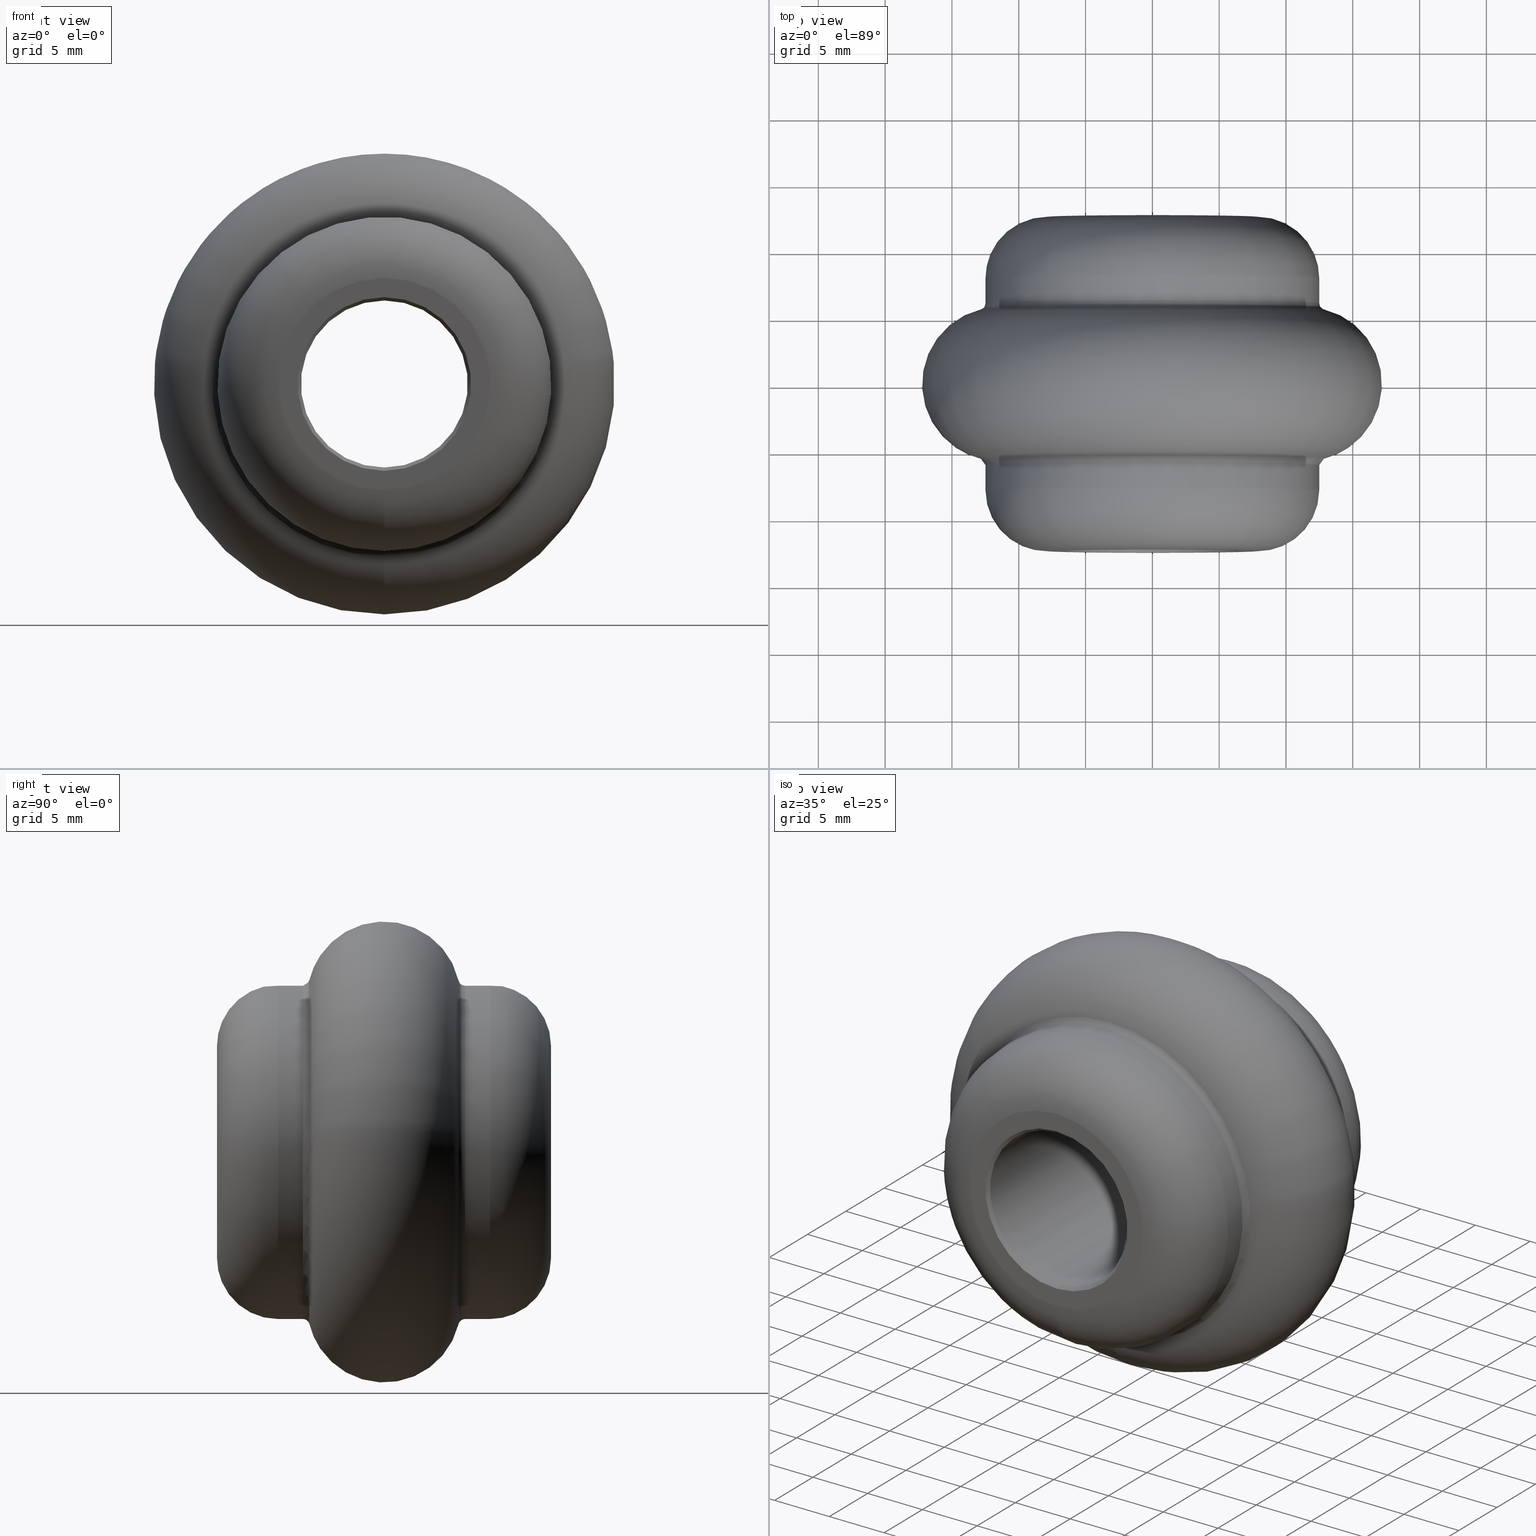
[diagram: canonical four-view strip — front | top / right | iso, engineering-drawing reading convention]
A machine part, canonical four-view strip (front | top / right | iso — engineering-drawing reading convention). The complete STEP part file that produces these views, byte-faithful:
ISO-10303-21;
HEADER;
FILE_DESCRIPTION (( 'STEP AP203' ),
    '1' );
FILE_NAME ('1380.STEP',
    '2024-10-22T13:54:10',
    ( '' ),
    ( '' ),
    'SwSTEP 2.0',
    'SolidWorks 2018',
    '' );
FILE_SCHEMA (( 'CONFIG_CONTROL_DESIGN' ));
ENDSEC;

DATA;
#1 = PRODUCT_RELATED_PRODUCT_CATEGORY ( 'detail', '', ( #226 ) ) ;
#2 = CARTESIAN_POINT ( 'NONE',  ( 0.000000000000000000, -12.50000000000000000, 0.000000000000000000 ) ) ;
#3 = EDGE_CURVE ( 'NONE', #181, #181, #79, .T. ) ;
#4 = CIRCLE ( 'NONE', #266, 6.250000000000000000 ) ;
#5 = DIRECTION ( 'NONE',  ( 0.000000000000000000, 0.000000000000000000, 1.000000000000000000 ) ) ;
#6 = LOCAL_TIME ( 15, 54, 10.00000000000000000, #74 ) ;
#7 = AXIS2_PLACEMENT_3D ( 'NONE', #213, #193, #317 ) ;
#8 = CARTESIAN_POINT ( 'NONE',  ( 0.000000000000000000, -12.50000000000000000, -6.500000000000005329 ) ) ;
#9 = DIRECTION ( 'NONE',  ( 1.000000000000000000, 0.000000000000000000, 0.000000000000000000 ) ) ;
#10 = CARTESIAN_POINT ( 'NONE',  ( 0.000000000000000000, 0.000000000000000000, 0.000000000000000000 ) ) ;
#11 = FACE_OUTER_BOUND ( 'NONE', #253, .T. ) ;
#12 = EDGE_LOOP ( 'NONE', ( #224 ) ) ;
#13 = ADVANCED_BREP_SHAPE_REPRESENTATION ( '1380', ( #264, #58 ), #174 ) ;
#14 = CC_DESIGN_PERSON_AND_ORGANIZATION_ASSIGNMENT ( #314, #68, ( #226 ) ) ;
#15 = CYLINDRICAL_SURFACE ( 'NONE', #233, 12.50000000000000000 ) ;
#16 = VERTEX_POINT ( 'NONE', #142 ) ;
#17 = FACE_OUTER_BOUND ( 'NONE', #307, .T. ) ;
#18 = EDGE_CURVE ( 'NONE', #306, #306, #43, .T. ) ;
#19 = COORDINATED_UNIVERSAL_TIME_OFFSET ( 1, 0, .AHEAD. ) ;
#20 = AXIS2_PLACEMENT_3D ( 'NONE', #164, #184, #5 ) ;
#21 = CARTESIAN_POINT ( 'NONE',  ( 0.000000000000000000, -12.50000000000000000, 0.000000000000000000 ) ) ;
#22 = AXIS2_PLACEMENT_3D ( 'NONE', #21, #238, #285 ) ;
#23 = ORIENTED_EDGE ( 'NONE', *, *, #149, .T. ) ;
#24 = ADVANCED_FACE ( 'NONE', ( #131, #11 ), #177, .F. ) ;
#25 = EDGE_LOOP ( 'NONE', ( #118 ) ) ;
#26 = CARTESIAN_POINT ( 'NONE',  ( 0.000000000000000000, 0.000000000000000000, 0.000000000000000000 ) ) ;
#27 = CC_DESIGN_PERSON_AND_ORGANIZATION_ASSIGNMENT ( #286, #65, ( #153 ) ) ;
#28 = CARTESIAN_POINT ( 'NONE',  ( 0.000000000000000000, 5.581944105775385800, 0.000000000000000000 ) ) ;
#29 = AXIS2_PLACEMENT_3D ( 'NONE', #73, #103, #260 ) ;
#30 = VERTEX_POINT ( 'NONE', #222 ) ;
#31 = ORIENTED_EDGE ( 'NONE', *, *, #69, .T. ) ;
#32 = DIRECTION ( 'NONE',  ( -0.000000000000000000, -1.000000000000000000, -0.000000000000000000 ) ) ;
#33 = APPLICATION_PROTOCOL_DEFINITION ( 'international standard', 'config_control_design', 1994, #247 ) ;
#34 =( NAMED_UNIT ( * ) SI_UNIT ( $, .STERADIAN. ) SOLID_ANGLE_UNIT ( ) );
#35 = ORGANIZATION ( 'UNSPECIFIED', 'UNSPECIFIED', '' ) ;
#36 = TOROIDAL_SURFACE ( 'NONE', #312, 7.936961005306948813, 4.563038994693052075 ) ;
#37 = APPROVAL_ROLE ( '' ) ;
#38 = DIRECTION ( 'NONE',  ( 0.000000000000000000, 1.000000000000000000, 0.000000000000000000 ) ) ;
#39 = CARTESIAN_POINT ( 'NONE',  ( 0.000000000000000000, 7.936961005306948813, -12.50000000000000000 ) ) ;
#40 = ORIENTED_EDGE ( 'NONE', *, *, #102, .F. ) ;
#41 = AXIS2_PLACEMENT_3D ( 'NONE', #162, #313, #295 ) ;
#42 = VERTEX_POINT ( 'NONE', #225 ) ;
#43 = CIRCLE ( 'NONE', #230, 12.50000000000000000 ) ;
#44 = EDGE_LOOP ( 'NONE', ( #67 ) ) ;
#45 = DIRECTION ( 'NONE',  ( 0.000000000000000000, -1.000000000000000000, -0.000000000000000000 ) ) ;
#46 = PERSON_AND_ORGANIZATION ( #138, #35 ) ;
#47 = DATE_AND_TIME ( #87, #228 ) ;
#48 = FACE_OUTER_BOUND ( 'NONE', #187, .T. ) ;
#49 = ADVANCED_FACE ( 'NONE', ( #125, #293 ), #262, .T. ) ;
#50 = DATE_AND_TIME ( #211, #178 ) ;
#51 = DIRECTION ( 'NONE',  ( -0.000000000000000000, -1.000000000000000000, -0.000000000000000000 ) ) ;
#52 = FACE_OUTER_BOUND ( 'NONE', #311, .T. ) ;
#53 = ORIENTED_EDGE ( 'NONE', *, *, #3, .F. ) ;
#54 = DIRECTION ( 'NONE',  ( 0.000000000000000000, 0.000000000000000000, -1.000000000000000000 ) ) ;
#55 = DIRECTION ( 'NONE',  ( 0.000000000000000000, 0.000000000000000000, 1.000000000000000000 ) ) ;
#56 = DIRECTION ( 'NONE',  ( -0.000000000000000000, -1.000000000000000000, -0.000000000000000000 ) ) ;
#57 = APPROVAL_DATE_TIME ( #50, #90 ) ;
#58 = AXIS2_PLACEMENT_3D ( 'NONE', #10, #221, #9 ) ;
#59 = DATE_AND_TIME ( #137, #6 ) ;
#60 = CIRCLE ( 'NONE', #29, 7.936961005306948813 ) ;
#61 = DIRECTION ( 'NONE',  ( 0.000000000000000000, 0.000000000000000000, -1.000000000000000000 ) ) ;
#62 = APPLICATION_PROTOCOL_DEFINITION ( 'international standard', 'config_control_design', 1994, #220 ) ;
#63 = AXIS2_PLACEMENT_3D ( 'NONE', #309, #45, #206 ) ;
#64 =( NAMED_UNIT ( * ) PLANE_ANGLE_UNIT ( ) SI_UNIT ( $, .RADIAN. ) );
#65 = PERSON_AND_ORGANIZATION_ROLE ( 'creator' ) ;
#66 = AXIS2_PLACEMENT_3D ( 'NONE', #106, #185, #107 ) ;
#67 = ORIENTED_EDGE ( 'NONE', *, *, #3, .T. ) ;
#68 = PERSON_AND_ORGANIZATION_ROLE ( 'design_owner' ) ;
#69 = EDGE_CURVE ( 'NONE', #30, #30, #60, .T. ) ;
#70 = CIRCLE ( 'NONE', #141, 7.936961005306948813 ) ;
#71 = ORIENTED_EDGE ( 'NONE', *, *, #72, .T. ) ;
#72 = EDGE_CURVE ( 'NONE', #112, #112, #70, .T. ) ;
#73 = CARTESIAN_POINT ( 'NONE',  ( 0.000000000000000000, 12.50000000000000000, 0.000000000000000000 ) ) ;
#74 = COORDINATED_UNIVERSAL_TIME_OFFSET ( 1, 0, .AHEAD. ) ;
#75 = TOROIDAL_SURFACE ( 'NONE', #326, 11.50000000000000178, 5.750000000000001776 ) ;
#76 = APPROVAL ( #115, 'UNSPECIFIED' ) ;
#77 = ADVANCED_FACE ( 'NONE', ( #92, #170 ), #151, .T. ) ;
#78 = AXIS2_PLACEMENT_3D ( 'NONE', #292, #32, #163 ) ;
#79 = CIRCLE ( 'NONE', #303, 6.500000000000005329 ) ;
#80 = EDGE_LOOP ( 'NONE', ( #259 ) ) ;
#81 = CARTESIAN_POINT ( 'NONE',  ( 0.000000000000000000, -12.24999999999999645, 0.000000000000000000 ) ) ;
#82 = CC_DESIGN_APPROVAL ( #105, ( #308 ) ) ;
#83 = CARTESIAN_POINT ( 'NONE',  ( 0.000000000000000000, -12.50000000000000000, 0.000000000000000000 ) ) ;
#84 = CARTESIAN_POINT ( 'NONE',  ( 0.000000000000000000, 12.50000000000000000, 0.000000000000000000 ) ) ;
#85 = COORDINATED_UNIVERSAL_TIME_OFFSET ( 1, 0, .AHEAD. ) ;
#86 = DIRECTION ( 'NONE',  ( 0.000000000000000000, 0.000000000000000000, -1.000000000000000000 ) ) ;
#87 = CALENDAR_DATE ( 2024, 22, 10 ) ;
#88 = EDGE_CURVE ( 'NONE', #109, #109, #232, .T. ) ;
#89 =( LENGTH_UNIT ( ) NAMED_UNIT ( * ) SI_UNIT ( .MILLI., .METRE. ) );
#90 = APPROVAL ( #93, 'UNSPECIFIED' ) ;
#91 = APPROVAL_DATE_TIME ( #95, #76 ) ;
#92 = FACE_OUTER_BOUND ( 'NONE', #25, .T. ) ;
#93 = APPROVAL_STATUS ( 'not_yet_approved' ) ;
#94 = DESIGN_CONTEXT ( 'detailed design', #247, 'design' ) ;
#95 = DATE_AND_TIME ( #100, #278 ) ;
#96 = APPROVAL_PERSON_ORGANIZATION ( #252, #76, #301 ) ;
#97 = CARTESIAN_POINT ( 'NONE',  ( 0.000000000000000000, -7.936961005306948813, 0.000000000000000000 ) ) ;
#98 = EDGE_LOOP ( 'NONE', ( #53 ) ) ;
#99 = CC_DESIGN_DATE_AND_TIME_ASSIGNMENT ( #202, #114, ( #126 ) ) ;
#100 = CALENDAR_DATE ( 2024, 22, 10 ) ;
#101 = EDGE_LOOP ( 'NONE', ( #147 ) ) ;
#102 = EDGE_CURVE ( 'NONE', #235, #235, #159, .T. ) ;
#103 = DIRECTION ( 'NONE',  ( -0.000000000000000000, -1.000000000000000000, -0.000000000000000000 ) ) ;
#104 = FACE_OUTER_BOUND ( 'NONE', #287, .T. ) ;
#105 = APPROVAL ( #274, 'UNSPECIFIED' ) ;
#106 = CARTESIAN_POINT ( 'NONE',  ( 0.000000000000000000, 12.24999999999999289, 0.000000000000000000 ) ) ;
#107 = DIRECTION ( 'NONE',  ( 0.000000000000000000, 0.000000000000000000, 1.000000000000000000 ) ) ;
#108 = CARTESIAN_POINT ( 'NONE',  ( 0.000000000000000000, -12.50000000000000000, 0.000000000000000000 ) ) ;
#109 = VERTEX_POINT ( 'NONE', #169 ) ;
#110 = EDGE_LOOP ( 'NONE', ( #320 ) ) ;
#111 = CC_DESIGN_APPROVAL ( #76, ( #153 ) ) ;
#112 = VERTEX_POINT ( 'NONE', #145 ) ;
#113 = CYLINDRICAL_SURFACE ( 'NONE', #20, 6.250000000000000000 ) ;
#114 = DATE_TIME_ROLE ( 'classification_date' ) ;
#115 = APPROVAL_STATUS ( 'not_yet_approved' ) ;
#116 = CARTESIAN_POINT ( 'NONE',  ( 0.000000000000000000, -7.936961005306948813, -12.50000000000000000 ) ) ;
#117 = ORIENTED_EDGE ( 'NONE', *, *, #199, .F. ) ;
#118 = ORIENTED_EDGE ( 'NONE', *, *, #102, .T. ) ;
#119 = EDGE_CURVE ( 'NONE', #150, #150, #196, .T. ) ;
#120 = PERSON_AND_ORGANIZATION ( #138, #35 ) ;
#121 = FACE_OUTER_BOUND ( 'NONE', #80, .T. ) ;
#122 = FACE_BOUND ( 'NONE', #205, .T. ) ;
#123 = CLOSED_SHELL ( 'NONE', ( #156, #49, #212, #77, #188, #130, #267, #158, #291, #210, #161, #24 ) ) ;
#124 = COORDINATED_UNIVERSAL_TIME_OFFSET ( 1, 0, .AHEAD. ) ;
#125 = FACE_BOUND ( 'NONE', #44, .T. ) ;
#126 = SECURITY_CLASSIFICATION ( '', '', #302 ) ;
#127 = CARTESIAN_POINT ( 'NONE',  ( 0.000000000000000000, -7.936961005306948813, 0.000000000000000000 ) ) ;
#128 = DIRECTION ( 'NONE',  ( 0.000000000000000000, 0.000000000000000000, -1.000000000000000000 ) ) ;
#129 = FACE_OUTER_BOUND ( 'NONE', #101, .T. ) ;
#130 = ADVANCED_FACE ( 'NONE', ( #139, #144 ), #15, .T. ) ;
#131 = FACE_OUTER_BOUND ( 'NONE', #152, .T. ) ;
#132 = CC_DESIGN_PERSON_AND_ORGANIZATION_ASSIGNMENT ( #46, #297, ( #126 ) ) ;
#133 = DIRECTION ( 'NONE',  ( -0.000000000000000000, -1.000000000000000000, -0.000000000000000000 ) ) ;
#134 = DIRECTION ( 'NONE',  ( -0.000000000000000000, -1.000000000000000000, -0.000000000000000000 ) ) ;
#135 = EDGE_CURVE ( 'NONE', #208, #208, #4, .T. ) ;
#136 = COORDINATED_UNIVERSAL_TIME_OFFSET ( 1, 0, .AHEAD. ) ;
#137 = CALENDAR_DATE ( 2024, 22, 10 ) ;
#138 = PERSON ( 'UNSPECIFIED', 'UNSPECIFIED', 'UNSPECIFIED', ('UNSPECIFIED'), ('UNSPECIFIED'), ('UNSPECIFIED') ) ;
#139 = FACE_OUTER_BOUND ( 'NONE', #12, .T. ) ;
#140 = CARTESIAN_POINT ( 'NONE',  ( 0.000000000000000000, 5.581944105775385800, -12.88000000000001322 ) ) ;
#141 = AXIS2_PLACEMENT_3D ( 'NONE', #2, #265, #236 ) ;
#142 = CARTESIAN_POINT ( 'NONE',  ( 0.000000000000000000, 6.067330549755802771, -12.50000000000000000 ) ) ;
#143 = APPROVAL_ROLE ( '' ) ;
#144 = FACE_OUTER_BOUND ( 'NONE', #294, .T. ) ;
#145 = CARTESIAN_POINT ( 'NONE',  ( 0.000000000000000000, -12.50000000000000000, -7.936961005306948813 ) ) ;
#146 = APPROVAL_PERSON_ORGANIZATION ( #261, #105, #143 ) ;
#147 = ORIENTED_EDGE ( 'NONE', *, *, #284, .T. ) ;
#148 = CC_DESIGN_SECURITY_CLASSIFICATION ( #126, ( #308 ) ) ;
#149 = EDGE_CURVE ( 'NONE', #200, #200, #300, .T. ) ;
#150 = VERTEX_POINT ( 'NONE', #140 ) ;
#151 = CYLINDRICAL_SURFACE ( 'NONE', #22, 12.50000000000000000 ) ;
#152 = EDGE_LOOP ( 'NONE', ( #244 ) ) ;
#153 = PRODUCT_DEFINITION ( 'UNKNOWN', '', #308, #94 ) ;
#154 = EDGE_CURVE ( 'NONE', #16, #16, #276, .T. ) ;
#155 = EDGE_LOOP ( 'NONE', ( #315 ) ) ;
#156 = ADVANCED_FACE ( 'NONE', ( #122, #121 ), #243, .T. ) ;
#157 = AXIS2_PLACEMENT_3D ( 'NONE', #207, #290, #55 ) ;
#158 = ADVANCED_FACE ( 'NONE', ( #52, #17 ), #113, .F. ) ;
#159 = CIRCLE ( 'NONE', #78, 12.50000000000000000 ) ;
#160 = DIRECTION ( 'NONE',  ( 0.000000000000000000, 1.000000000000000000, 0.000000000000000000 ) ) ;
#161 = ADVANCED_FACE ( 'NONE', ( #48, #248 ), #255, .F. ) ;
#162 = CARTESIAN_POINT ( 'NONE',  ( 0.000000000000000000, -6.067330549755800995, 0.000000000000000000 ) ) ;
#163 = DIRECTION ( 'NONE',  ( 0.000000000000000000, 0.000000000000000000, -1.000000000000000000 ) ) ;
#164 = CARTESIAN_POINT ( 'NONE',  ( 0.000000000000000000, -12.50000000000000000, 0.000000000000000000 ) ) ;
#165 = FACE_OUTER_BOUND ( 'NONE', #237, .T. ) ;
#166 = ORIENTED_EDGE ( 'NONE', *, *, #119, .T. ) ;
#167 = DIRECTION ( 'NONE',  ( 0.000000000000000000, 0.000000000000000000, 1.000000000000000000 ) ) ;
#168 = PERSON_AND_ORGANIZATION_ROLE ( 'design_supplier' ) ;
#169 = CARTESIAN_POINT ( 'NONE',  ( 0.000000000000000000, 12.50000000000000000, 6.500000000000011546 ) ) ;
#170 = FACE_OUTER_BOUND ( 'NONE', #155, .T. ) ;
#171 = PERSON_AND_ORGANIZATION_ROLE ( 'creator' ) ;
#172 = CC_DESIGN_DATE_AND_TIME_ASSIGNMENT ( #47, #194, ( #153 ) ) ;
#173 = EDGE_LOOP ( 'NONE', ( #40 ) ) ;
#174 =( GEOMETRIC_REPRESENTATION_CONTEXT ( 3 ) GLOBAL_UNCERTAINTY_ASSIGNED_CONTEXT ( ( #254 ) ) GLOBAL_UNIT_ASSIGNED_CONTEXT ( ( #89, #64, #34 ) ) REPRESENTATION_CONTEXT ( 'NONE', 'WORKASPACE' ) );
#175 = AXIS2_PLACEMENT_3D ( 'NONE', #28, #134, #128 ) ;
#176 = CONICAL_SURFACE ( 'NONE', #242, 6.250000000000000000, 0.7853981633974569387 ) ;
#177 = TOROIDAL_SURFACE ( 'NONE', #316, 13.00000000000000178, 0.5000000000000000000 ) ;
#178 = LOCAL_TIME ( 15, 54, 10.00000000000000000, #85 ) ;
#179 = ORIENTED_EDGE ( 'NONE', *, *, #88, .F. ) ;
#180 = DIRECTION ( 'NONE',  ( 0.000000000000000000, 0.000000000000000000, -1.000000000000000000 ) ) ;
#181 = VERTEX_POINT ( 'NONE', #8 ) ;
#182 = FACE_OUTER_BOUND ( 'NONE', #214, .T. ) ;
#183 = ORIENTED_EDGE ( 'NONE', *, *, #199, .T. ) ;
#184 = DIRECTION ( 'NONE',  ( -0.000000000000000000, 1.000000000000000000, -0.000000000000000000 ) ) ;
#185 = DIRECTION ( 'NONE',  ( 0.000000000000000000, 1.000000000000000000, 0.000000000000000000 ) ) ;
#186 = APPROVAL_PERSON_ORGANIZATION ( #281, #90, #37 ) ;
#187 = EDGE_LOOP ( 'NONE', ( #282 ) ) ;
#188 = ADVANCED_FACE ( 'NONE', ( #129, #182 ), #75, .T. ) ;
#189 = EDGE_LOOP ( 'NONE', ( #71 ) ) ;
#190 = DIRECTION ( 'NONE',  ( 0.000000000000000000, 0.000000000000000000, -1.000000000000000000 ) ) ;
#191 = DIRECTION ( 'NONE',  ( 0.000000000000000000, 0.000000000000000000, -1.000000000000000000 ) ) ;
#192 = AXIS2_PLACEMENT_3D ( 'NONE', #245, #215, #191 ) ;
#193 = DIRECTION ( 'NONE',  ( 0.000000000000000000, 1.000000000000000000, 0.000000000000000000 ) ) ;
#194 = DATE_TIME_ROLE ( 'creation_date' ) ;
#195 = APPROVAL_DATE_TIME ( #59, #105 ) ;
#196 = CIRCLE ( 'NONE', #175, 12.88000000000001322 ) ;
#197 = CARTESIAN_POINT ( 'NONE',  ( 0.000000000000000000, -5.581944105775385800, 0.000000000000000000 ) ) ;
#198 = ORIENTED_EDGE ( 'NONE', *, *, #119, .F. ) ;
#199 = EDGE_CURVE ( 'NONE', #231, #231, #218, .T. ) ;
#200 = VERTEX_POINT ( 'NONE', #249 ) ;
#201 = AXIS2_PLACEMENT_3D ( 'NONE', #84, #160, #246 ) ;
#202 = DATE_AND_TIME ( #296, #327 ) ;
#203 = EDGE_LOOP ( 'NONE', ( #322 ) ) ;
#204 = DIRECTION ( 'NONE',  ( 0.000000000000000000, 1.000000000000000000, 0.000000000000000000 ) ) ;
#205 = EDGE_LOOP ( 'NONE', ( #272 ) ) ;
#206 = DIRECTION ( 'NONE',  ( 0.000000000000000000, 0.000000000000000000, -1.000000000000000000 ) ) ;
#207 = CARTESIAN_POINT ( 'NONE',  ( 0.000000000000000000, 12.50000000000000000, 0.000000000000000000 ) ) ;
#208 = VERTEX_POINT ( 'NONE', #321 ) ;
#209 = CONICAL_SURFACE ( 'NONE', #323, 6.500000000000005329, 0.7853981633974517207 ) ;
#210 = ADVANCED_FACE ( 'NONE', ( #279, #328 ), #209, .F. ) ;
#211 = CALENDAR_DATE ( 2024, 22, 10 ) ;
#212 = ADVANCED_FACE ( 'NONE', ( #104, #263 ), #239, .T. ) ;
#213 = CARTESIAN_POINT ( 'NONE',  ( 0.000000000000000000, 6.067330549755802771, 0.000000000000000000 ) ) ;
#214 = EDGE_LOOP ( 'NONE', ( #166 ) ) ;
#215 = DIRECTION ( 'NONE',  ( -0.000000000000000000, -1.000000000000000000, -0.000000000000000000 ) ) ;
#216 = CARTESIAN_POINT ( 'NONE',  ( 0.000000000000000000, 12.24999999999999289, 0.000000000000000000 ) ) ;
#217 = FACE_BOUND ( 'NONE', #329, .T. ) ;
#218 = CIRCLE ( 'NONE', #192, 12.50000000000000000 ) ;
#219 = DIRECTION ( 'NONE',  ( -0.000000000000000000, -1.000000000000000000, -0.000000000000000000 ) ) ;
#220 = APPLICATION_CONTEXT ( 'configuration controlled 3d designs of mechanical parts and assemblies' ) ;
#221 = DIRECTION ( 'NONE',  ( 0.000000000000000000, 0.000000000000000000, 1.000000000000000000 ) ) ;
#222 = CARTESIAN_POINT ( 'NONE',  ( 0.000000000000000000, 12.50000000000000000, -7.936961005306948813 ) ) ;
#223 = CIRCLE ( 'NONE', #283, 12.88000000000001322 ) ;
#224 = ORIENTED_EDGE ( 'NONE', *, *, #154, .T. ) ;
#225 = CARTESIAN_POINT ( 'NONE',  ( 0.000000000000000000, -5.581944105775385800, 12.88000000000001322 ) ) ;
#226 = PRODUCT ( '1380', '1380', '', ( #251 ) ) ;
#227 = DIRECTION ( 'NONE',  ( 0.000000000000000000, 0.000000000000000000, 1.000000000000000000 ) ) ;
#228 = LOCAL_TIME ( 15, 54, 10.00000000000000000, #19 ) ;
#229 = CC_DESIGN_PERSON_AND_ORGANIZATION_ASSIGNMENT ( #319, #168, ( #308 ) ) ;
#230 = AXIS2_PLACEMENT_3D ( 'NONE', #97, #280, #288 ) ;
#231 = VERTEX_POINT ( 'NONE', #39 ) ;
#232 = CIRCLE ( 'NONE', #157, 6.500000000000011546 ) ;
#233 = AXIS2_PLACEMENT_3D ( 'NONE', #108, #219, #86 ) ;
#234 = PRODUCT_DEFINITION_SHAPE ( 'NONE', 'NONE',  #153 ) ;
#235 = VERTEX_POINT ( 'NONE', #275 ) ;
#236 = DIRECTION ( 'NONE',  ( 0.000000000000000000, 0.000000000000000000, -1.000000000000000000 ) ) ;
#237 = EDGE_LOOP ( 'NONE', ( #179 ) ) ;
#238 = DIRECTION ( 'NONE',  ( -0.000000000000000000, -1.000000000000000000, -0.000000000000000000 ) ) ;
#239 = TOROIDAL_SURFACE ( 'NONE', #289, 7.936961005306948813, 4.563038994693052075 ) ;
#240 = ORIENTED_EDGE ( 'NONE', *, *, #135, .T. ) ;
#241 = DIRECTION ( 'NONE',  ( 0.000000000000000000, 0.000000000000000000, -1.000000000000000000 ) ) ;
#242 = AXIS2_PLACEMENT_3D ( 'NONE', #216, #318, #167 ) ;
#243 = PLANE ( 'NONE',  #201 ) ;
#244 = ORIENTED_EDGE ( 'NONE', *, *, #154, .F. ) ;
#245 = CARTESIAN_POINT ( 'NONE',  ( 0.000000000000000000, 7.936961005306948813, 0.000000000000000000 ) ) ;
#246 = DIRECTION ( 'NONE',  ( 0.000000000000000000, -0.000000000000000000, 1.000000000000000000 ) ) ;
#247 = APPLICATION_CONTEXT ( 'configuration controlled 3d designs of mechanical parts and assemblies' ) ;
#248 = FACE_OUTER_BOUND ( 'NONE', #173, .T. ) ;
#249 = CARTESIAN_POINT ( 'NONE',  ( 0.000000000000000000, 12.24999999999999289, 6.250000000000000000 ) ) ;
#250 = EDGE_LOOP ( 'NONE', ( #31 ) ) ;
#251 = MECHANICAL_CONTEXT ( 'NONE', #220, 'mechanical' ) ;
#252 = PERSON_AND_ORGANIZATION ( #138, #35 ) ;
#253 = EDGE_LOOP ( 'NONE', ( #198 ) ) ;
#254 = UNCERTAINTY_MEASURE_WITH_UNIT (LENGTH_MEASURE( 1.000000000000000082E-05 ), #89, 'distance_accuracy_value', 'NONE');
#255 = TOROIDAL_SURFACE ( 'NONE', #41, 13.00000000000000178, 0.5000000000000000000 ) ;
#256 = CARTESIAN_POINT ( 'NONE',  ( 0.000000000000000000, -12.50000000000000000, 0.000000000000000000 ) ) ;
#257 = DIRECTION ( 'NONE',  ( -0.000000000000000000, -1.000000000000000000, -0.000000000000000000 ) ) ;
#258 = ORIENTED_EDGE ( 'NONE', *, *, #149, .F. ) ;
#259 = ORIENTED_EDGE ( 'NONE', *, *, #69, .F. ) ;
#260 = DIRECTION ( 'NONE',  ( 0.000000000000000000, 0.000000000000000000, -1.000000000000000000 ) ) ;
#261 = PERSON_AND_ORGANIZATION ( #138, #35 ) ;
#262 = PLANE ( 'NONE',  #63 ) ;
#263 = FACE_OUTER_BOUND ( 'NONE', #110, .T. ) ;
#264 = MANIFOLD_SOLID_BREP ( 'Verrundung1', #123 ) ;
#265 = DIRECTION ( 'NONE',  ( -0.000000000000000000, -1.000000000000000000, -0.000000000000000000 ) ) ;
#266 = AXIS2_PLACEMENT_3D ( 'NONE', #81, #133, #54 ) ;
#267 = ADVANCED_FACE ( 'NONE', ( #268, #324 ), #36, .T. ) ;
#268 = FACE_OUTER_BOUND ( 'NONE', #250, .T. ) ;
#269 = EDGE_LOOP ( 'NONE', ( #117 ) ) ;
#270 = DIRECTION ( 'NONE',  ( -0.000000000000000000, -1.000000000000000000, -0.000000000000000000 ) ) ;
#271 = DIRECTION ( 'NONE',  ( 0.000000000000000000, 0.000000000000000000, -1.000000000000000000 ) ) ;
#272 = ORIENTED_EDGE ( 'NONE', *, *, #88, .T. ) ;
#273 = CARTESIAN_POINT ( 'NONE',  ( 0.000000000000000000, 7.936961005306948813, 0.000000000000000000 ) ) ;
#274 = APPROVAL_STATUS ( 'not_yet_approved' ) ;
#275 = CARTESIAN_POINT ( 'NONE',  ( 0.000000000000000000, -6.067330549755800995, -12.50000000000000000 ) ) ;
#276 = CIRCLE ( 'NONE', #7, 12.50000000000000000 ) ;
#277 = CC_DESIGN_PERSON_AND_ORGANIZATION_ASSIGNMENT ( #120, #171, ( #308 ) ) ;
#278 = LOCAL_TIME ( 15, 54, 10.00000000000000000, #124 ) ;
#279 = FACE_BOUND ( 'NONE', #203, .T. ) ;
#280 = DIRECTION ( 'NONE',  ( -0.000000000000000000, -1.000000000000000000, -0.000000000000000000 ) ) ;
#281 = PERSON_AND_ORGANIZATION ( #138, #35 ) ;
#282 = ORIENTED_EDGE ( 'NONE', *, *, #284, .F. ) ;
#283 = AXIS2_PLACEMENT_3D ( 'NONE', #197, #38, #227 ) ;
#284 = EDGE_CURVE ( 'NONE', #42, #42, #223, .T. ) ;
#285 = DIRECTION ( 'NONE',  ( 0.000000000000000000, 0.000000000000000000, -1.000000000000000000 ) ) ;
#286 = PERSON_AND_ORGANIZATION ( #138, #35 ) ;
#287 = EDGE_LOOP ( 'NONE', ( #310 ) ) ;
#288 = DIRECTION ( 'NONE',  ( 0.000000000000000000, 0.000000000000000000, -1.000000000000000000 ) ) ;
#289 = AXIS2_PLACEMENT_3D ( 'NONE', #127, #270, #271 ) ;
#290 = DIRECTION ( 'NONE',  ( -0.000000000000000000, -1.000000000000000000, -0.000000000000000000 ) ) ;
#291 = ADVANCED_FACE ( 'NONE', ( #165, #217 ), #176, .F. ) ;
#292 = CARTESIAN_POINT ( 'NONE',  ( 0.000000000000000000, -6.067330549755800995, 0.000000000000000000 ) ) ;
#293 = FACE_OUTER_BOUND ( 'NONE', #189, .T. ) ;
#294 = EDGE_LOOP ( 'NONE', ( #183 ) ) ;
#295 = DIRECTION ( 'NONE',  ( 0.000000000000000000, 0.000000000000000000, -1.000000000000000000 ) ) ;
#296 = CALENDAR_DATE ( 2024, 22, 10 ) ;
#297 = PERSON_AND_ORGANIZATION_ROLE ( 'classification_officer' ) ;
#298 = DIRECTION ( 'NONE',  ( -0.000000000000000000, -1.000000000000000000, -0.000000000000000000 ) ) ;
#299 = SHAPE_DEFINITION_REPRESENTATION ( #234, #13 ) ;
#300 = CIRCLE ( 'NONE', #66, 6.250000000000000000 ) ;
#301 = APPROVAL_ROLE ( '' ) ;
#302 = SECURITY_CLASSIFICATION_LEVEL ( 'unclassified' ) ;
#303 = AXIS2_PLACEMENT_3D ( 'NONE', #256, #204, #304 ) ;
#304 = DIRECTION ( 'NONE',  ( 0.000000000000000000, 0.000000000000000000, -1.000000000000000000 ) ) ;
#305 = CC_DESIGN_APPROVAL ( #90, ( #126 ) ) ;
#306 = VERTEX_POINT ( 'NONE', #116 ) ;
#307 = EDGE_LOOP ( 'NONE', ( #240 ) ) ;
#308 = PRODUCT_DEFINITION_FORMATION_WITH_SPECIFIED_SOURCE ( 'ANY', '', #226, .NOT_KNOWN. ) ;
#309 = CARTESIAN_POINT ( 'NONE',  ( 0.000000000000000000, -12.50000000000000000, 0.000000000000000000 ) ) ;
#310 = ORIENTED_EDGE ( 'NONE', *, *, #18, .T. ) ;
#311 = EDGE_LOOP ( 'NONE', ( #23 ) ) ;
#312 = AXIS2_PLACEMENT_3D ( 'NONE', #273, #298, #61 ) ;
#313 = DIRECTION ( 'NONE',  ( -0.000000000000000000, -1.000000000000000000, -0.000000000000000000 ) ) ;
#314 = PERSON_AND_ORGANIZATION ( #138, #35 ) ;
#315 = ORIENTED_EDGE ( 'NONE', *, *, #18, .F. ) ;
#316 = AXIS2_PLACEMENT_3D ( 'NONE', #325, #257, #180 ) ;
#317 = DIRECTION ( 'NONE',  ( 0.000000000000000000, 0.000000000000000000, -1.000000000000000000 ) ) ;
#318 = DIRECTION ( 'NONE',  ( 0.000000000000000000, 1.000000000000000000, 0.000000000000000000 ) ) ;
#319 = PERSON_AND_ORGANIZATION ( #138, #35 ) ;
#320 = ORIENTED_EDGE ( 'NONE', *, *, #72, .F. ) ;
#321 = CARTESIAN_POINT ( 'NONE',  ( 0.000000000000000000, -12.24999999999999645, -6.250000000000000000 ) ) ;
#322 = ORIENTED_EDGE ( 'NONE', *, *, #135, .F. ) ;
#323 = AXIS2_PLACEMENT_3D ( 'NONE', #83, #56, #190 ) ;
#324 = FACE_OUTER_BOUND ( 'NONE', #269, .T. ) ;
#325 = CARTESIAN_POINT ( 'NONE',  ( 0.000000000000000000, 6.067330549755800995, 0.000000000000000000 ) ) ;
#326 = AXIS2_PLACEMENT_3D ( 'NONE', #26, #51, #241 ) ;
#327 = LOCAL_TIME ( 15, 54, 10.00000000000000000, #136 ) ;
#328 = FACE_OUTER_BOUND ( 'NONE', #98, .T. ) ;
#329 = EDGE_LOOP ( 'NONE', ( #258 ) ) ;
ENDSEC;
END-ISO-10303-21;
